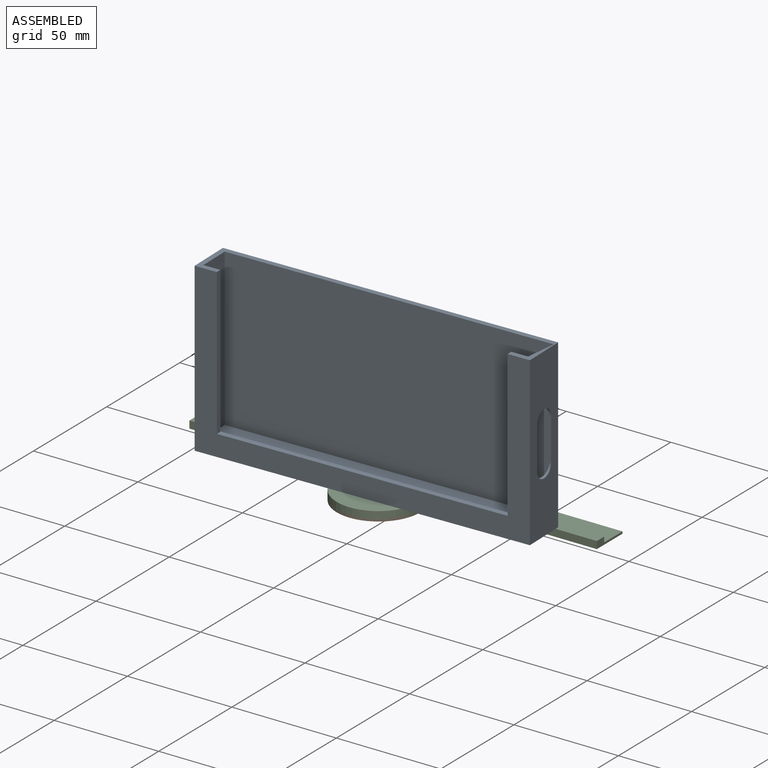
[diagram: assembled view]
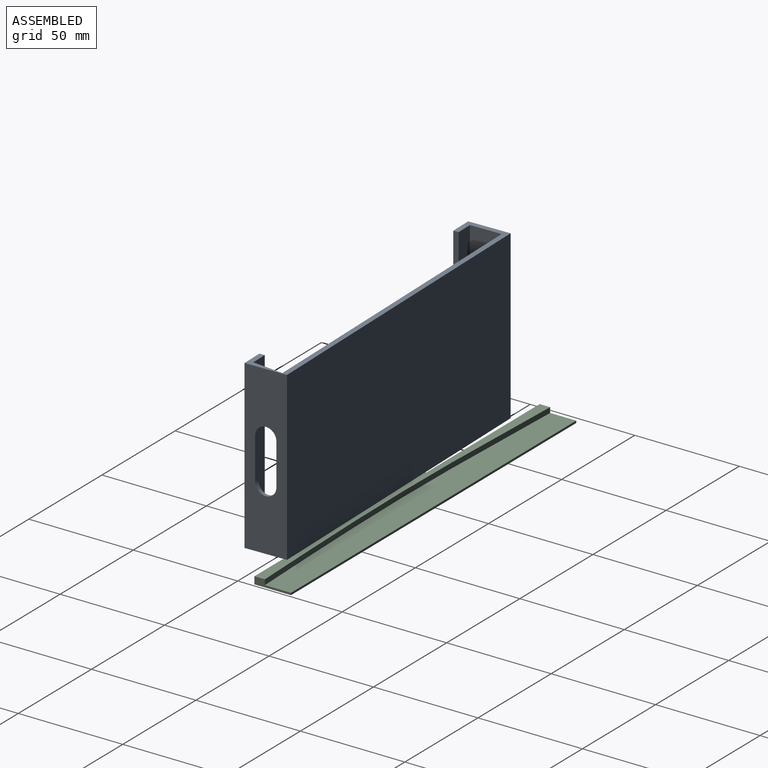
[diagram: assembled view, second angle]
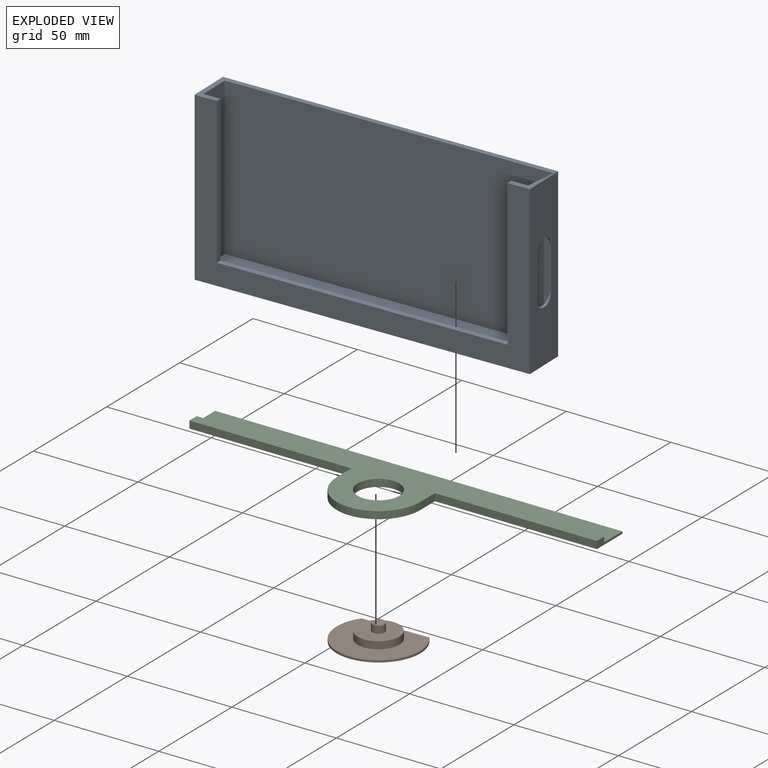
[diagram: exploded view]
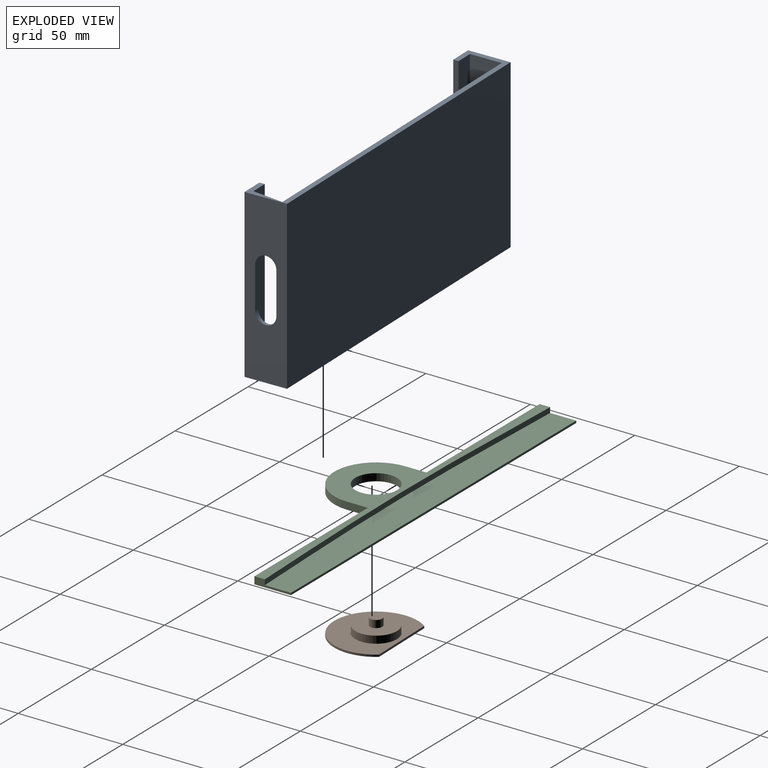
[diagram: exploded view, second angle]
ASSEMBLY  parts=3 mates=2
PART A: 21 faces, bbox 158x20x80 mm
  f0: plane 70x2.5mm, normal (1,0,0), area 175mm2, adj f5,f9,f13,f14
  f1: plane 15x5mm, normal (1,0,0), area 75mm2, adj f2,f3,f6,f7
  f2: plane 153x15mm, normal (0,0,1), area 2295mm2, adj f1,f4,f5,f6
  f3: plane 158x20mm, normal (0,0,-1), area 3116.7mm2, adj f1,f6,f7,f9,f10,f11,f12,f15
  f4: plane 75x15mm, normal (1,0,0), area 1125mm2, adj f2,f5,f6,f13
  f5: plane 153x75mm, normal (0,1,0), area 1885mm2, adj f0,f2,f4,f7,f8,f13,f14
  f6: plane 155x80mm, normal (0,-1,0), area 11635mm2, adj f1,f2,f3,f4,f7,f13
  f7: plane 80x15mm, normal (-0.99,0.13,0), area 929.6mm2, adj f1,f3,f5,f6,f13,f17,f18,f19
  f8: plane 70x2.5mm, normal (-1,0,0), area 175mm2, adj f5,f9,f13,f14
  f9: plane 158x80mm, normal (0,-1,0), area 3050mm2, adj f0,f3,f8,f10,f12,f13,f14
  f10: plane 80x20mm, normal (1,0,0), area 1321.5mm2, adj f3,f9,f11,f13,f17,f18,f19,f20
  f11: plane 158x80mm, normal (0,1,0), area 12640mm2, adj f3,f10,f12,f13
  f12: plane 80x20mm, normal (-1,0,0), area 1600mm2, adj f3,f9,f11,f13
  f13: plane 158x20mm, normal (0,0,1), area 507.5mm2, adj f0,f4,f5,f6,f7,f8,f9,f10
  f14: plane 137x2.5mm, normal (0,0,1), area 342.5mm2, adj f0,f5,f8,f9
  f15: cylinder r=3mm len=6mm, axis (0,0,-1), area 75.4mm2, adj f3,f16
  f16: plane 6x6mm, normal (0,0,-1), area 28.3mm2, adj f15
  f17: cylinder r=5mm len=10mm, axis (1,0,0), area 23.6mm2, adj f7,f10,f18,f20
  f18: plane 20x0.83mm, normal (0,-1,0), area 16.7mm2, adj f7,f10,f17,f19
  f19: cylinder r=5mm len=10mm, axis (1,0,0), area 23.6mm2, adj f7,f10,f18,f20
  f20: plane 20x2.17mm, normal (0,1,0), area 43.3mm2, adj f7,f10,f17,f19
PART B: 8 faces, bbox 40x32x8 mm
  f0: cylinder r=20mm len=40mm, axis (0,0,-1), area 88.6mm2, adj f1,f2,f7
  f1: plane 40x32mm, normal (0,0,1), area 768.3mm2, adj f0,f3,f7
  f2: plane 40x32mm, normal (0,0,-1), area 1077.7mm2, adj f0,f7
  f3: cylinder r=9.92mm len=19.85mm, axis (0,0,-1), area 218.3mm2, adj f1,f4
  f4: plane 19.85x19.85mm, normal (0,0,1), area 282.6mm2, adj f3,f5
  f5: cylinder r=2.93mm len=5.85mm, axis (0,0,-1), area 64.3mm2, adj f4,f6
  f6: plane 5.85x5.85mm, normal (0,0,1), area 26.9mm2, adj f5
  f7: plane 32x1mm, normal (0,1,0), area 32mm2, adj f0,f1,f2
PART C: 13 faces, bbox 195x47.5x3.5 mm
  f0: plane 195x15.13mm, normal (0,0,1), area 2742.2mm2, adj f1,f2,f3,f12
  f1: plane 17.5x3.5mm, normal (1,0,0), area 30mm2, adj f0,f2,f4,f7,f9,f12
  f2: plane 195x1mm, normal (0,1,0), area 195mm2, adj f0,f1,f3,f4
  f3: plane 17.5x3.5mm, normal (-1,0,0), area 30mm2, adj f0,f2,f4,f6,f7,f12
  f4: plane 195x47.5mm, normal (0,0,-1), area 4126.7mm2, adj f1,f2,f3,f5,f6,f8,f9,f10
  f5: plane 10x3.5mm, normal (-1,0,0), area 35mm2, adj f4,f6,f7,f8
  f6: plane 77.5x3.5mm, normal (0,-1,0), area 271.2mm2, adj f3,f4,f5,f7
  f7: plane 195x35mm, normal (0,0,1), area 1384.5mm2, adj f1,f3,f5,f6,f8,f9,f10,f11
  f8: cylinder r=20mm len=40mm, axis (0,0,-1), area 219.9mm2, adj f4,f5,f7,f10
  f9: plane 77.5x3.5mm, normal (0,-1,0), area 271.2mm2, adj f1,f4,f7,f10
  f10: plane 10x3.5mm, normal (1,0,0), area 35mm2, adj f4,f7,f8,f9
  f11: cylinder r=10mm len=20mm, axis (0,0,1), area 219.9mm2, adj f4,f7
  f12: extruded ~195x2.5mm, area 487.7mm2, adj f0,f1,f3,f7
PLACE A rot(axis=(0,0,1),1.3deg) t=(15.94,28.71,23.86)mm
PLACE B rot(axis=(0,0,1),1.3deg) t=(15.97,27.46,19.36)mm
PLACE C rot(axis=(-0.88,-0.44,-0.14),0deg) t=(15.97,39.96,20.36)mm
MATE revolute B.f0 <-> C.f8  axis (0,0,1) through (15.97,27.46,20.36)mm
MATE fastened B.f0 <-> A.f15  axis (0,0,-1) through (15.97,27.46,23.86)mm
